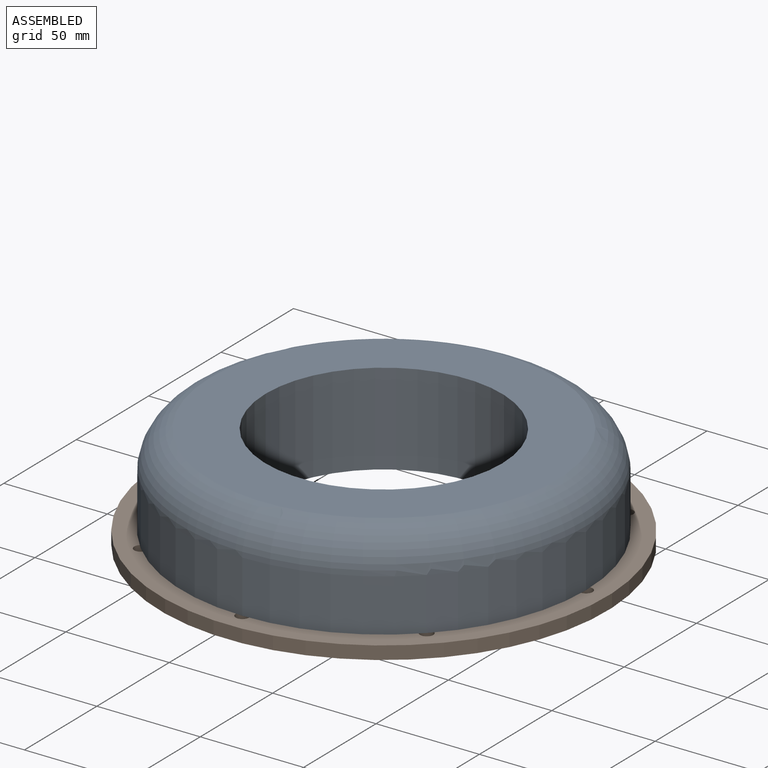
[diagram: assembled view]
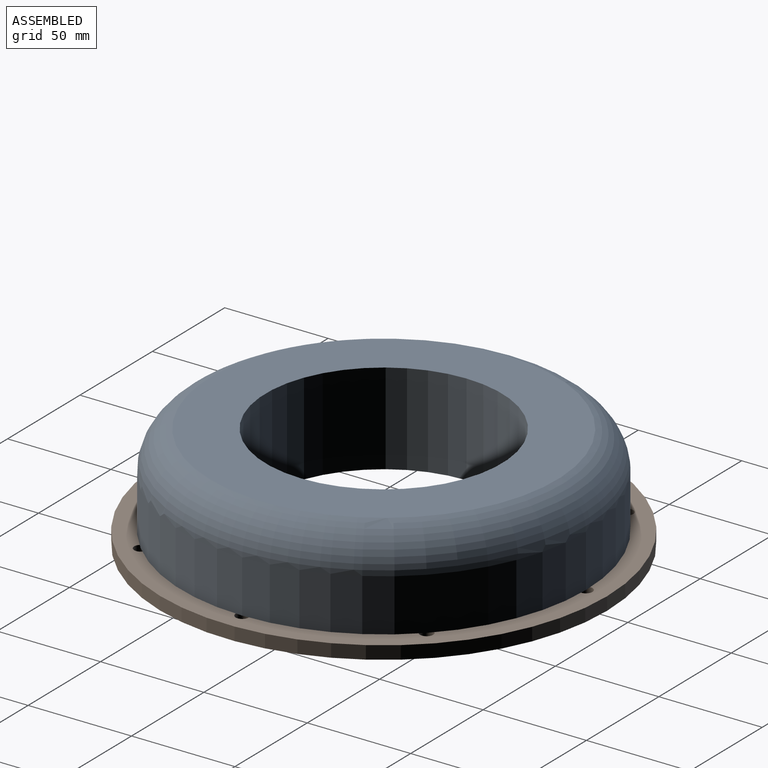
[diagram: assembled view, second angle]
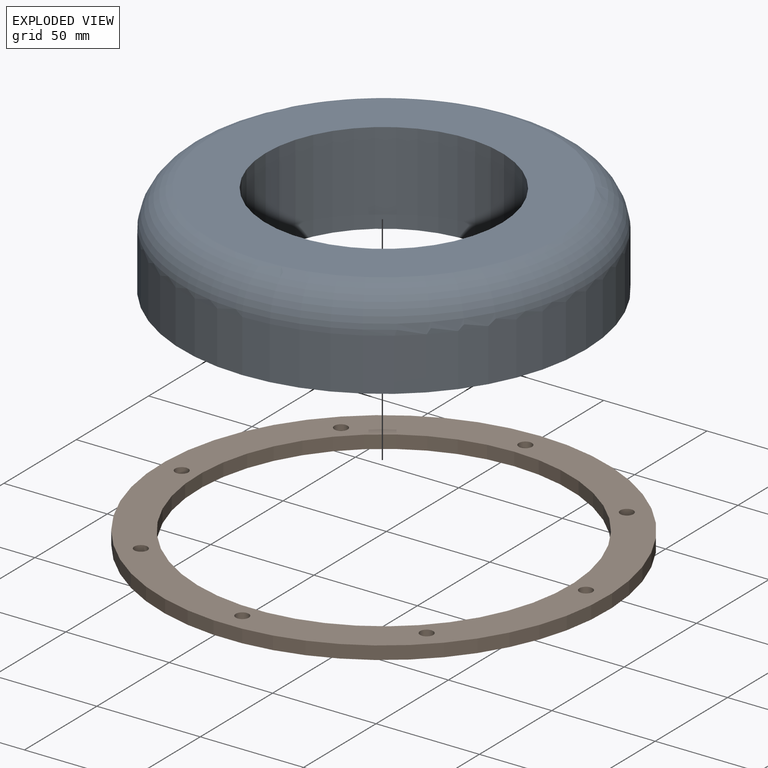
[diagram: exploded view]
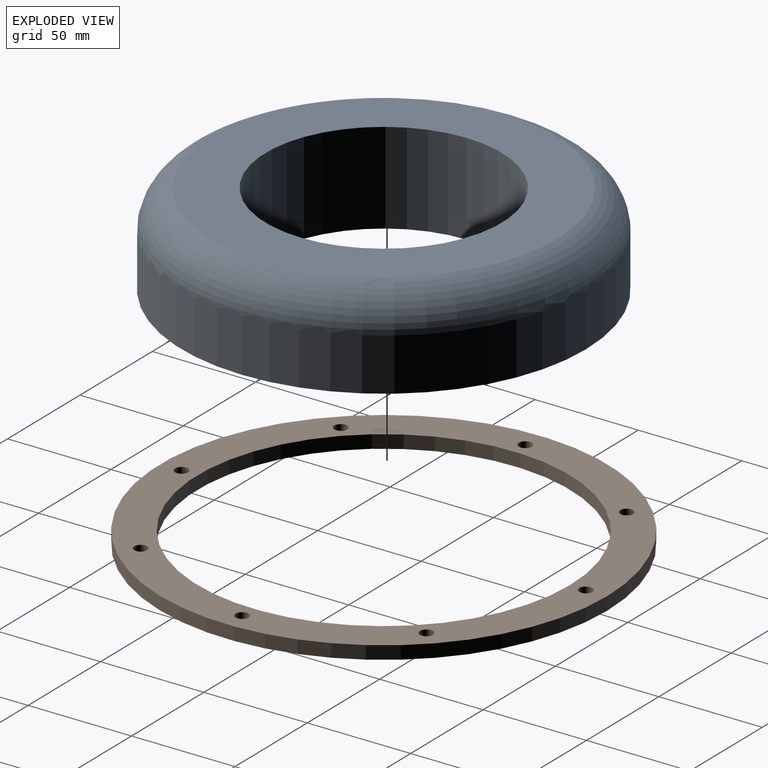
[diagram: exploded view, second angle]
ASSEMBLY  parts=2 mates=2
PART A: 5 faces, bbox 211.7x211.7x45.4 mm
  f0: cylinder r=97.79mm len=195.58mm, axis (0,0,-1), area 15606.6mm2, adj f1,f4
  f1: plane 195.58x195.58mm, normal (0,0,-1), area 19781.9mm2, adj f0,f2
  f2: cylinder r=57.15mm len=114.3mm, axis (0,0,-1), area 15961.3mm2, adj f1,f3
  f3: plane 167.64x167.64mm, normal (0,0,1), area 11811.4mm2, adj f2,f4
  f4: torus R=77.82mm, axis (0,0,-1), area 14749.3mm2, adj f0,f3
PART B: 12 faces, bbox 216x6.4x216 mm
  f0: cylinder r=3.17mm len=6.35mm, axis (0,1,0), area 126.7mm2, adj f10,f11
  f1: cylinder r=3.17mm len=6.35mm, axis (0,1,0), area 126.7mm2, adj f10,f11
  f2: cylinder r=3.17mm len=6.35mm, axis (0,1,0), area 126.7mm2, adj f10,f11
  f3: cylinder r=3.17mm len=6.35mm, axis (0,1,0), area 126.7mm2, adj f10,f11
  f4: cylinder r=3.17mm len=6.35mm, axis (0,1,0), area 126.7mm2, adj f10,f11
  f5: cylinder r=3.17mm len=6.35mm, axis (0,1,0), area 126.7mm2, adj f10,f11
  f6: cylinder r=3.17mm len=6.35mm, axis (0,1,0), area 126.7mm2, adj f10,f11
  f7: cylinder r=3.17mm len=6.35mm, axis (0,1,0), area 126.7mm2, adj f10,f11
  f8: cylinder r=90mm len=180mm, axis (0,1,0), area 3590.8mm2, adj f10,f11
  f9: cylinder r=108mm len=216mm, axis (0,1,0), area 4309mm2, adj f10,f11
  f10: plane 216x216mm, normal (0,-1,0), area 10943.3mm2, adj f0,f1,f2,f3,f4,f5,f6,f7
  f11: plane 216x216mm, normal (0,1,0), area 10943.3mm2, adj f0,f1,f2,f3,f4,f5,f6,f7
PLACE A t=(23.98,3.78,183.6)mm
PLACE B rot(axis=(1,0,0),90deg) t=(81.13,3.78,183.6)mm
MATE cylindrical B.f8 <-> A.f0  axis (0,0,1) through (81.13,3.78,183.6)mm
MATE planar B.f9 <-> A.f0  axis (0,0,1) through (81.13,3.78,183.6)mm
